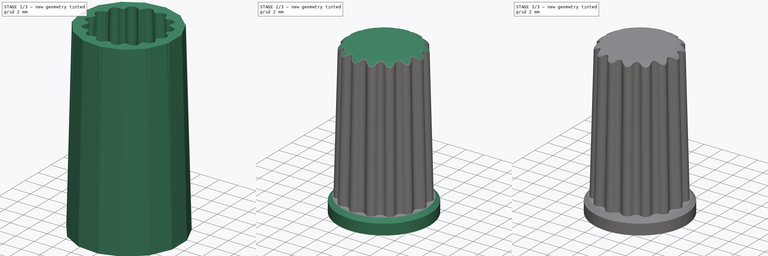
[diagram: build sequence overview — one tinted view per stage of 3, left to right]
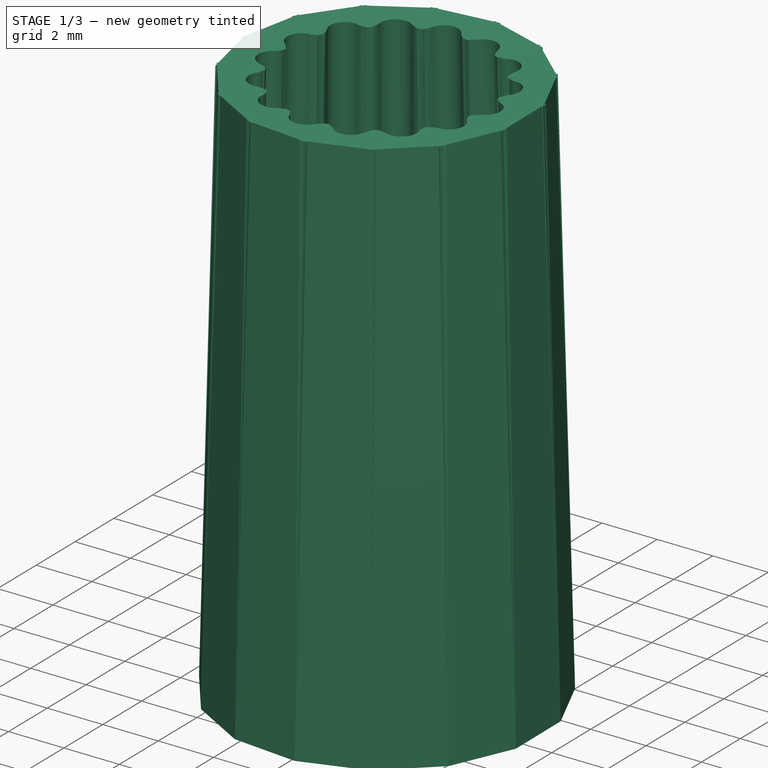
[diagram: stage 1 of 3 — iso view after this stage's code; geometry added in this stage tinted green]
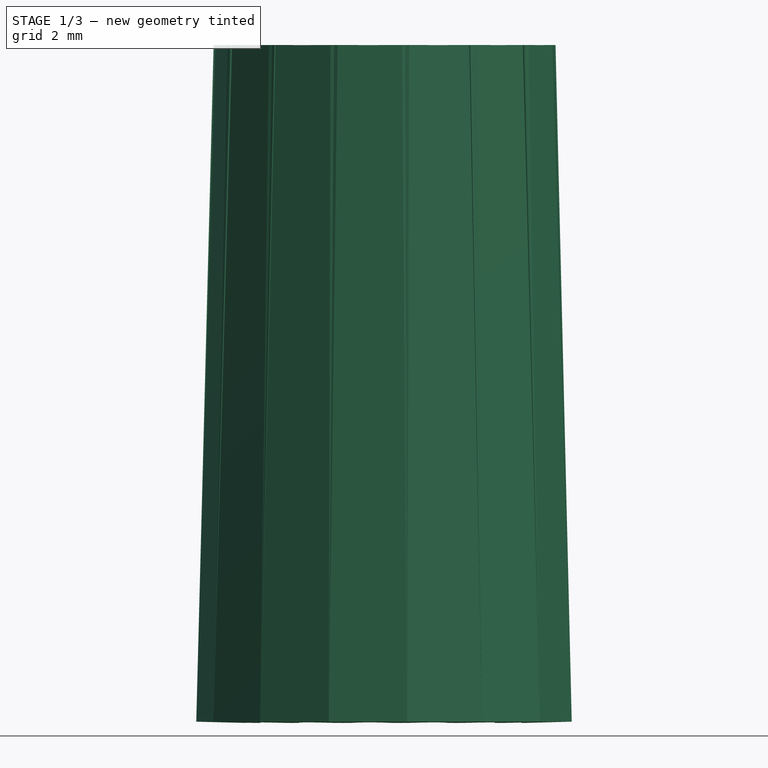
[diagram: stage 1 of 3 — front view after this stage's code; geometry added in this stage tinted green]
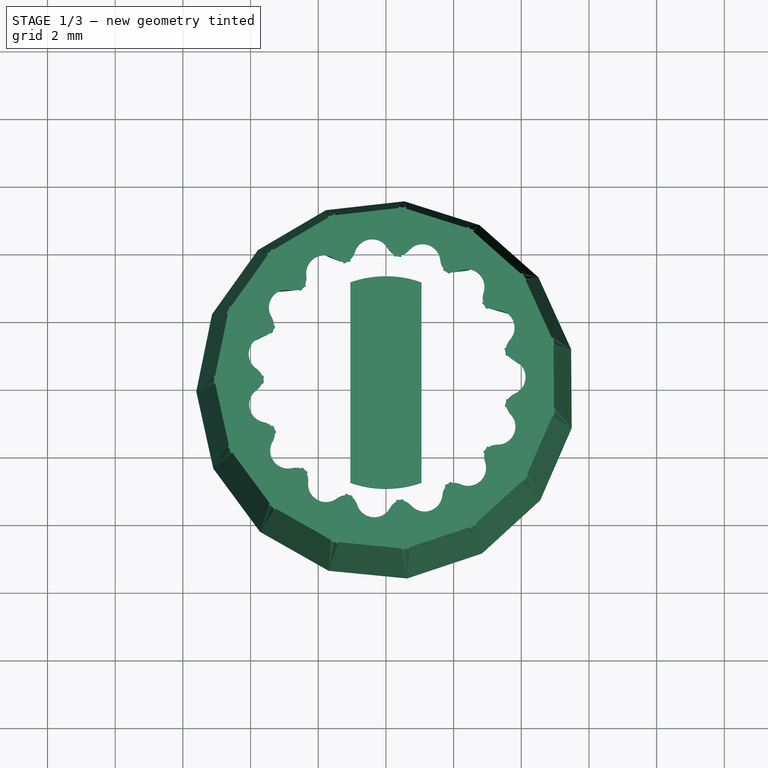
[diagram: stage 1 of 3 — top view after this stage's code; geometry added in this stage tinted green]
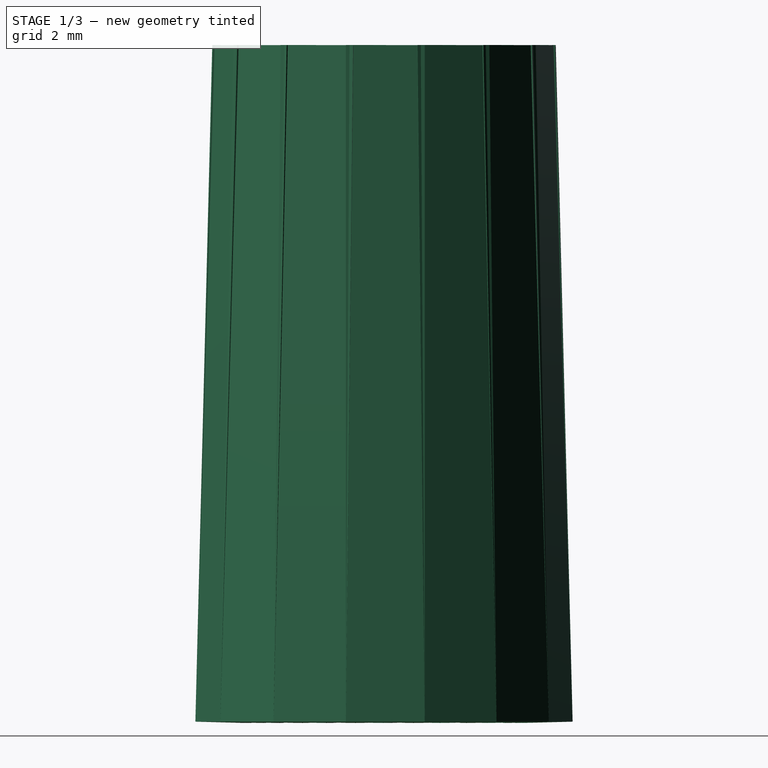
[diagram: stage 1 of 3 — right view after this stage's code; geometry added in this stage tinted green]
FCSTD DOCUMENT  (FreeCAD 0.16R6706 (Git))
Label: knob_small
License: All rights reserved
LicenseURL: http://en.wikipedia.org/wiki/All_rights_reserved
objects: Sketcher::SketchObject×4, PartDesign::Pad×3, Part::Cut×2, PartDesign::Revolution×1, Part::FeaturePython×1, Part::MultiFuse×1
note: 16 computed .brp shape members not serialized (recipe doc carries the construction recipe); baked Part::Feature solids carry a one-line shape summary decoded from their .brp

FEATURE [Sketcher::SketchObject] Sketch003  label="Sketch (inner grip)"
  Placement = pos=(0,0,1.5) rot=(0,-1,0;0.02618rad)
  sketch-geometry (10):
    g0: ArcOfCircle CenterX=4.12147 CenterY=0.0320306 CenterZ=0 NormalX=0 NormalY=0 NormalZ=1 Radius=0.528401 StartAngle=5.13588 EndAngle=7.44604
    g1: ArcOfCircle CenterX=4.54074 CenterY=1.00211 CenterZ=0 NormalX=0 NormalY=0 NormalZ=1 Radius=0.528401 StartAngle=3.3588 EndAngle=4.30444
    g2: ArcOfCircle CenterX=4.55576 CenterY=-0.931413 CenterZ=0 NormalX=0 NormalY=0 NormalZ=1 Radius=0.528401 StartAngle=1.99429 EndAngle=2.93992
    g3: LineSegment [constr] StartX=4.54074 StartY=1.00211 StartZ=0 EndX=0 EndY=0 EndZ=0
    g4: LineSegment [constr] StartX=0 StartY=0 StartZ=0 EndX=4.55576 EndY=-0.931413 EndZ=0
    g5: LineSegment StartX=4.02475 StartY=0.888233 StartZ=0 EndX=5.47449 EndY=1.20818 EndZ=0
    g6: LineSegment StartX=5.47449 StartY=1.20818 StartZ=0 EndX=5.4926 EndY=-1.12295 EndZ=0
    g7: LineSegment StartX=5.4926 StartY=-1.12295 StartZ=0 EndX=4.03807 EndY=-0.825572 EndZ=0
    g8: ArcOfCircle [constr] CenterX=0 CenterY=0 CenterZ=0 NormalX=0 NormalY=0 NormalZ=1 Radius=4.1216 StartAngle=6.08152 EndAngle=6.5004
    g9: LineSegment [constr] StartX=4.12147 StartY=0.0320306 StartZ=0 EndX=4.64986 EndY=0.036137 EndZ=0
  constraints (28):
    c: Coincident(g1,g0)
    c: Coincident(g2,g0)
    c: Coincident(g3,g1)
    c: Coincident(g3,g-1)
    c: Coincident(g4,g-1)
    c: Coincident(g4,g2)
    c: Equal(g1,g0)
    c: Equal(g0,g2)
    c: PointOnObject(g1,g3)
    c: PointOnObject(g2,g4)
    c: Coincident(g5,g1)
    c: Coincident(g6,g5)
    c: Coincident(g7,g6)
    c: Coincident(g7,g2)
    c: Parallel(g4,g7)
    c: Parallel(g5,g3)
    c: Tangent(g0,g1)
    c: Tangent(g0,g2)
    c: Angle(g4,g3) = 0.418879
    c: Coincident(g8,g-1)
    c: Coincident(g8,g1)
    c: Coincident(g8,g2)
    c: PointOnObject(g0,g8)
    c: Coincident(g9,g0)
    c: PointOnObject(g9,g0)
    c: Perpendicular(g8,g9)
    c: Distance(g-1,g9) = 4.65
    c: Equal(g7,g5)
FEATURE [PartDesign::Pad] Pad001  label="Pad (inner grip)"
  Length = 20
  Length2 = 100
  Placement = pos=(0,0,1.5) rot=(0,-1,0;0.02618rad)
  Sketch = -> Sketch003
  Type = 0
FEATURE [Part::FeaturePython] Array001  label="Array (grip)"  # Draft array (typed FeaturePython)
  Angle = 360
  ArrayType = 1
  Axis = (0,0,1)
  Base = -> Pad001
  Center = (0,0,0)
  Fuse = true
  IntervalAxis = (0,0,0)
  IntervalX = (1,0,0)
  IntervalY = (0,1,0)
  IntervalZ = (0,0,0)
  NumberPolar = 15
  NumberX = 2
  NumberY = 2
  NumberZ = 1
FEATURE [Sketcher::SketchObject] Sketch006  label="Sketch (bridge assist)"
  Placement = pos=(0,0,14) rot=(0,0,1;1.5708rad)
  sketch-geometry (4):
    g0: LineSegment StartX=-2.95924 StartY=1.05 StartZ=0 EndX=2.95924 EndY=1.05 EndZ=0
    g1: LineSegment StartX=-2.95924 StartY=-1.05 StartZ=0 EndX=2.95924 EndY=-1.05 EndZ=0
    g2: ArcOfCircle CenterX=0 CenterY=0 CenterZ=0 NormalX=0 NormalY=0 NormalZ=1 Radius=3.14 StartAngle=2.80063 EndAngle=3.48256
    g3: ArcOfCircle CenterX=0 CenterY=0 CenterZ=0 NormalX=0 NormalY=0 NormalZ=1 Radius=3.14 StartAngle=5.94222 EndAngle=6.62415
  constraints (12):
    c: Horizontal(g0)
    c: Horizontal(g1)
    c: Equal(g0,g1)
    c: Coincident(g2,g-1)
    c: Coincident(g2,g0)
    c: Coincident(g2,g1)
    c: Coincident(g3,g-1)
    c: Coincident(g3,g0)
    c: Coincident(g3,g1)
    c: Equal(g3,g2)
    c: Radius(g3) = 3.14
    c: DistanceY(g1,g0) = 2.1
FEATURE [PartDesign::Pad] Pad002  label="Pad (bridge assist)"
  Length = 0.5
  Length2 = 1
  Placement = pos=(0,0,14) rot=(0,0,1;1.5708rad)
  Sketch = -> Sketch006
  Type = 0
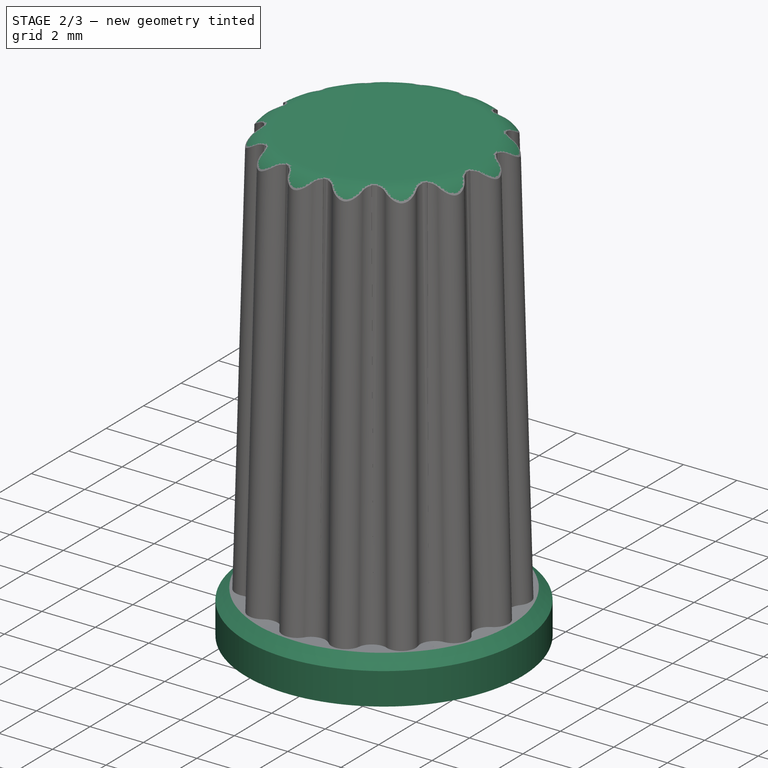
[diagram: stage 2 of 3 — iso view after this stage's code; geometry added in this stage tinted green]
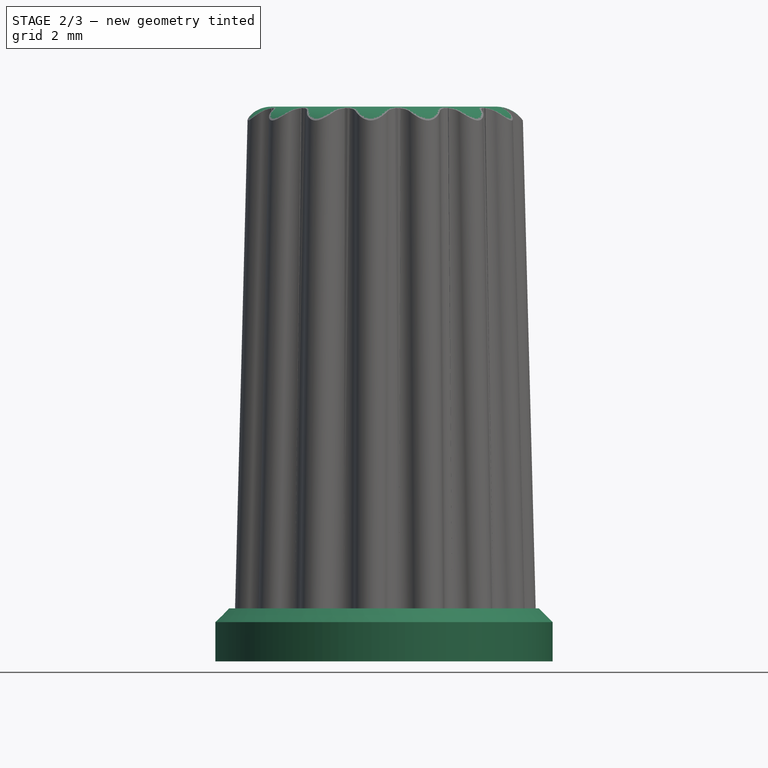
[diagram: stage 2 of 3 — front view after this stage's code; geometry added in this stage tinted green]
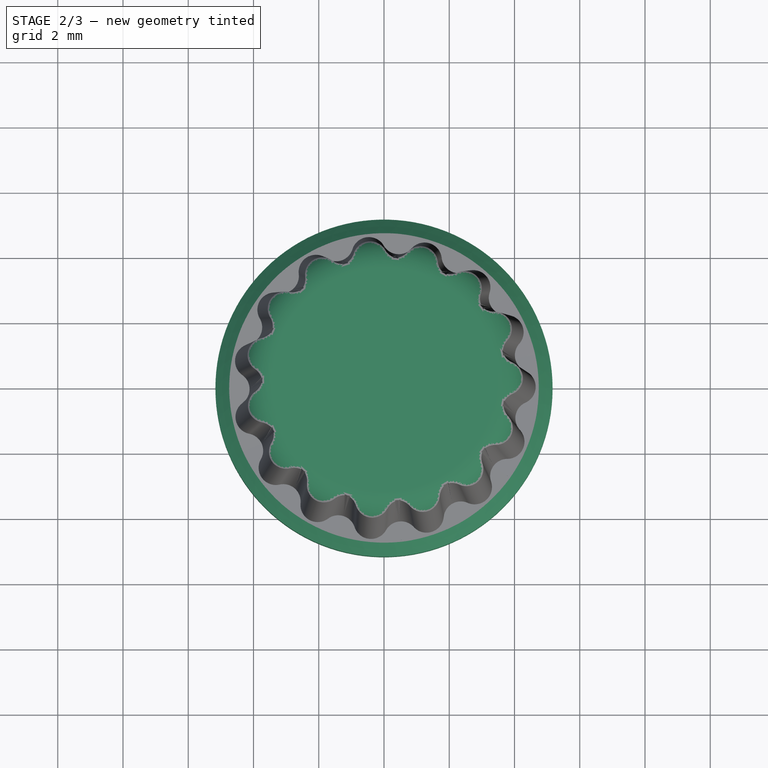
[diagram: stage 2 of 3 — top view after this stage's code; geometry added in this stage tinted green]
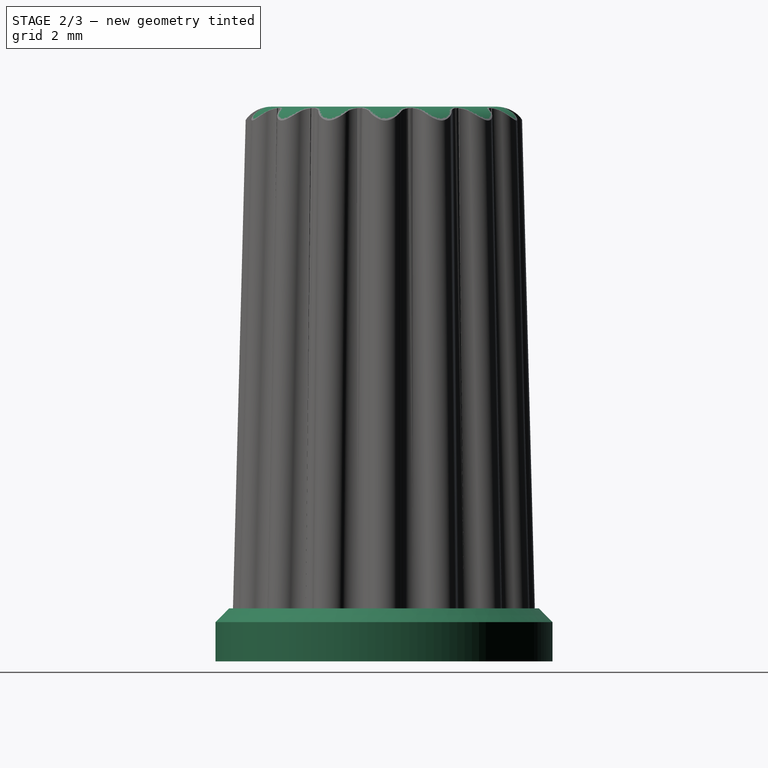
[diagram: stage 2 of 3 — right view after this stage's code; geometry added in this stage tinted green]
FEATURE [Sketcher::SketchObject] Sketch
  Placement = pos=(0,0,0) rot=(1,0,0;1.5708rad)
  sketch-geometry (11):
    g0: LineSegment StartX=3.14 StartY=0 StartZ=0 EndX=3.14 EndY=14 EndZ=0
    g1: LineSegment StartX=3.14 StartY=14 StartZ=0 EndX=0 EndY=14 EndZ=0
    g2: LineSegment StartX=0 StartY=14 StartZ=0 EndX=0 EndY=17 EndZ=0
    g3: LineSegment StartX=0 StartY=17 StartZ=0 EndX=3.44 EndY=17 EndZ=0
    g4: ArcOfCircle CenterX=3.44 CenterY=16 CenterZ=0 NormalX=0 NormalY=0 NormalZ=1 Radius=1 StartAngle=0 EndAngle=1.5708
    g5: LineSegment [constr] StartX=3.44 StartY=17 StartZ=0 EndX=3.44 EndY=16 EndZ=0
    g6: LineSegment [constr] StartX=4.44 StartY=16 StartZ=0 EndX=3.44 EndY=16 EndZ=0
    g7: LineSegment StartX=3.14 StartY=0 StartZ=0 EndX=5.16717 EndY=0 EndZ=0
    g8: LineSegment StartX=5.16717 StartY=0 StartZ=0 EndX=5.16717 EndY=1.2 EndZ=0
    g9: LineSegment StartX=5.16717 StartY=1.2 StartZ=0 EndX=4.69001 EndY=1.67717 EndZ=0
    g10: LineSegment StartX=4.69001 StartY=1.67717 StartZ=0 EndX=4.44 EndY=16 EndZ=0
  constraints (31):
    c: PointOnObject(g0,g-1)
    c: Vertical(g0)
    c: DistanceY(g0,g0) = 14
    c: Coincident(g1,g0)
    c: PointOnObject(g1,g-2)
    c: Horizontal(g1)
    c: Coincident(g2,g1)
    c: PointOnObject(g2,g-2)
    c: DistanceY(g2,g2) = 3
    c: Coincident(g3,g2)
    c: Horizontal(g3)
    c: Coincident(g5,g4)
    c: Vertical(g5)
    c: Coincident(g6,g4)
    c: Coincident(g6,g4)
    c: Horizontal(g6)
    c: Coincident(g7,g0)
    c: Horizontal(g7)
    c: DistanceX(g-1,g0) = 3.14
    c: Coincident(g4,g3)
    c: DistanceX(g0,g4) = 1.3
    c: Coincident(g8,g7)
    c: Coincident(g9,g8)
    c: Coincident(g10,g9)
    c: Coincident(g10,g4)
    c: Vertical(g8)
    c: Angle(g9,g8) = 2.35619
    c: Angle(g10) = 1.58825
    c: DistanceY(g8,g8) = 1.2
    c: Coincident(g5,g3)
    c: Radius(g4) = 1
FEATURE [PartDesign::Revolution] Revolution
  Angle = 360
  Axis = (0,0,1)
  Base = (0,0,0)
  Placement = pos=(0,0,0) rot=(1,0,0;1.5708rad)
  ReferenceAxis = -> Sketch [V_Axis]
  Sketch = -> Sketch
FEATURE [Part::Cut] Cut  label="Cut (knob with grip)"
  Base = -> Revolution
  Tool = -> Array001
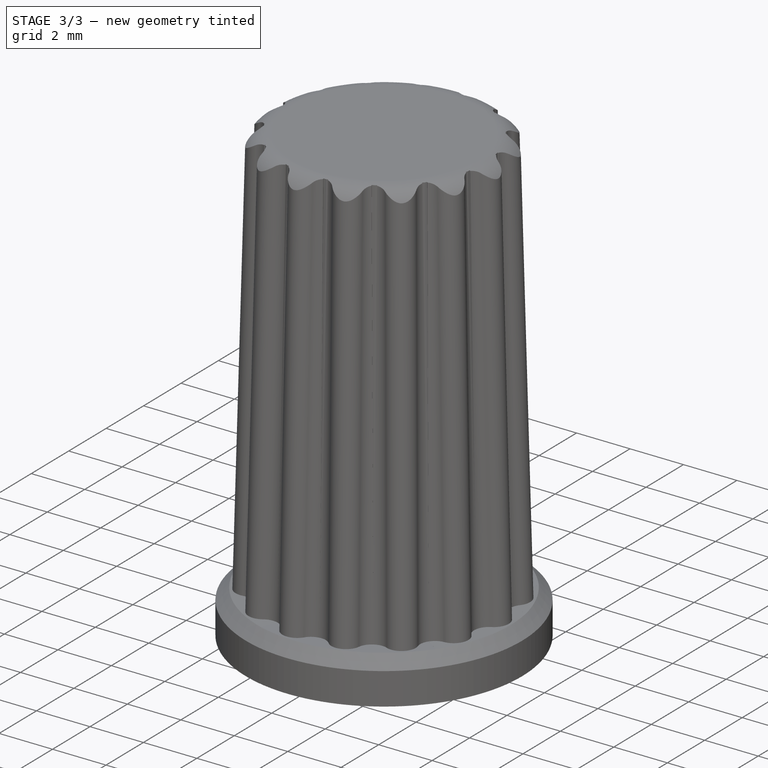
[diagram: stage 3 of 3 — iso view after this stage's code; geometry added in this stage tinted green]
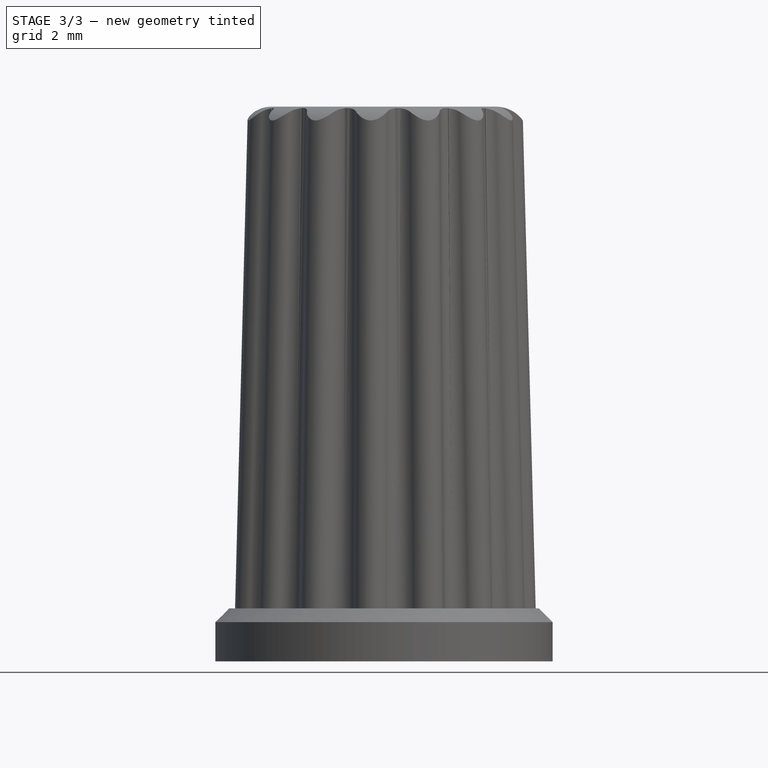
[diagram: stage 3 of 3 — front view after this stage's code; geometry added in this stage tinted green]
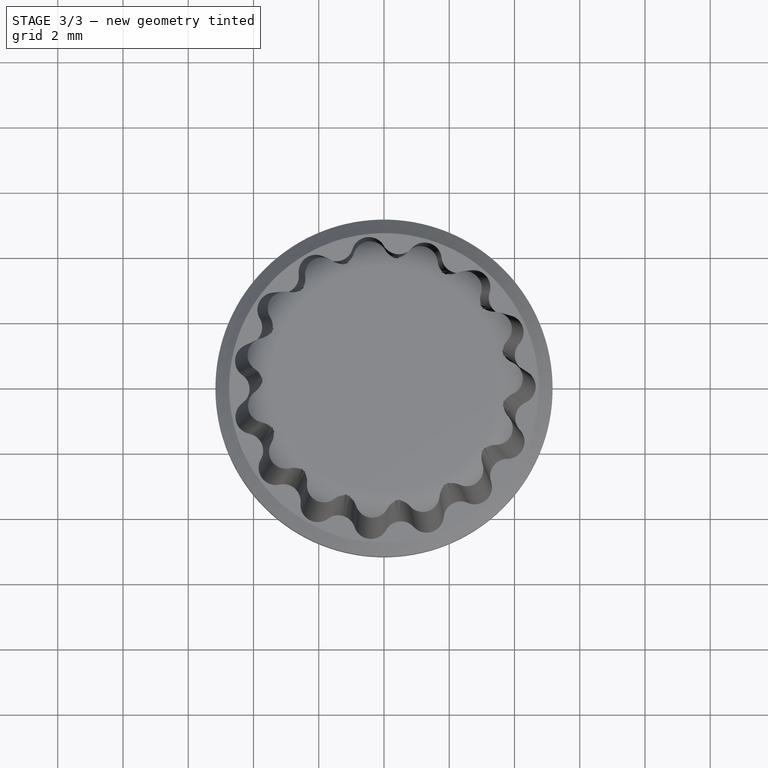
[diagram: stage 3 of 3 — top view after this stage's code; geometry added in this stage tinted green]
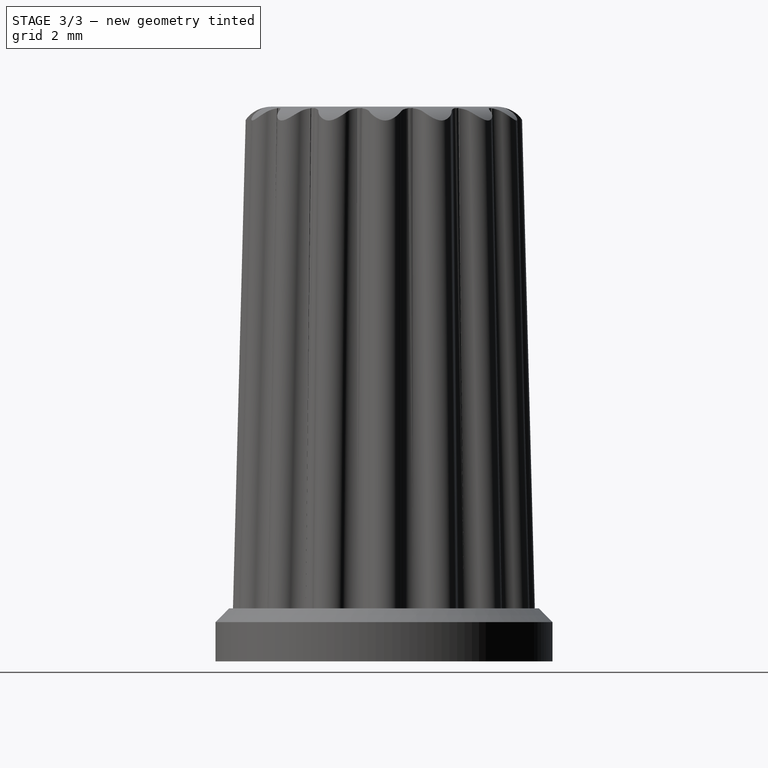
[diagram: stage 3 of 3 — right view after this stage's code; geometry added in this stage tinted green]
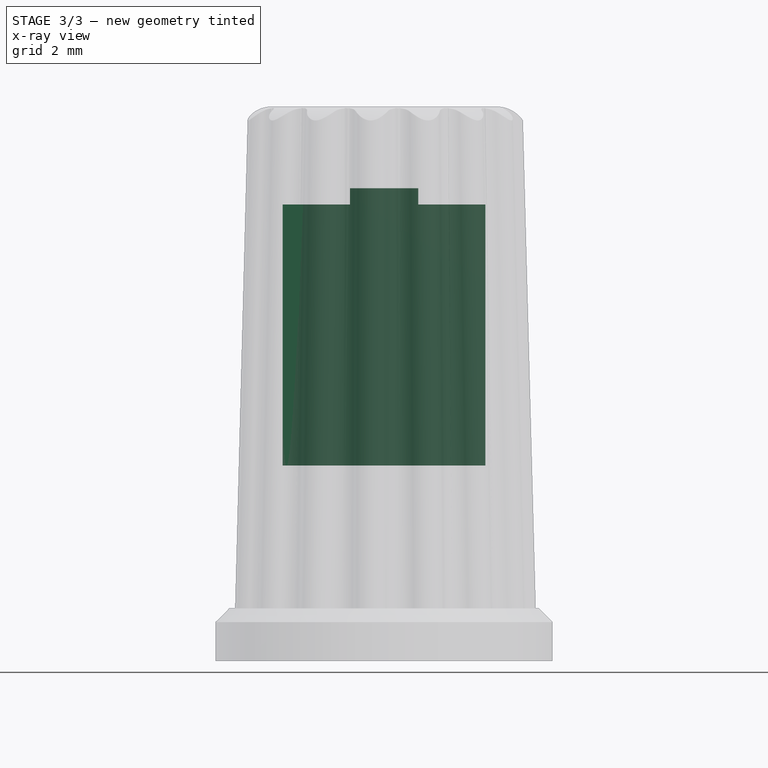
[diagram: stage 3 of 3 — x-ray composite at the front view; earlier geometry ghosted, this stage's added geometry solid]
FEATURE [Sketcher::SketchObject] Sketch005  label="Sketch (slot)"
  Placement = pos=(0,0,0) rot=(1,0,0;1.5708rad)
  sketch-geometry (4):
    g0: LineSegment StartX=3.2 StartY=6 StartZ=0 EndX=3.2 EndY=15 EndZ=0
    g1: LineSegment StartX=3.2 StartY=15 StartZ=0 EndX=-3.2 EndY=15 EndZ=0
    g2: LineSegment StartX=-3.2 StartY=15 StartZ=0 EndX=-3.2 EndY=6 EndZ=0
    g3: LineSegment StartX=-3.2 StartY=6 StartZ=0 EndX=3.2 EndY=6 EndZ=0
  constraints (12):
    c: Vertical(g0)
    c: Coincident(g1,g0)
    c: Horizontal(g1)
    c: Coincident(g2,g1)
    c: Vertical(g2)
    c: Coincident(g3,g2)
    c: Horizontal(g3)
    c: Coincident(g0,g3)
    c: DistanceX(g1,g1) = 6.4
    c: Symmetric(g0,g2,g-2)
    c: DistanceY(g-1,g0) = 15
    c: DistanceY(g0,g0) = 9
FEATURE [PartDesign::Pad] Pad  label="Pad (slot)"
  Length = 0.45
  Length2 = 0.45
  Placement = pos=(0,0,0) rot=(1,0,0;1.5708rad)
  Sketch = -> Sketch005
  Type = 4
FEATURE [Part::Cut] Cut001  label="Cut (bridge assist)"
  Base = -> Cut
  Tool = -> Pad002
FEATURE [Part::MultiFuse] Fusion
  Shapes = -> [Cut001,Pad]
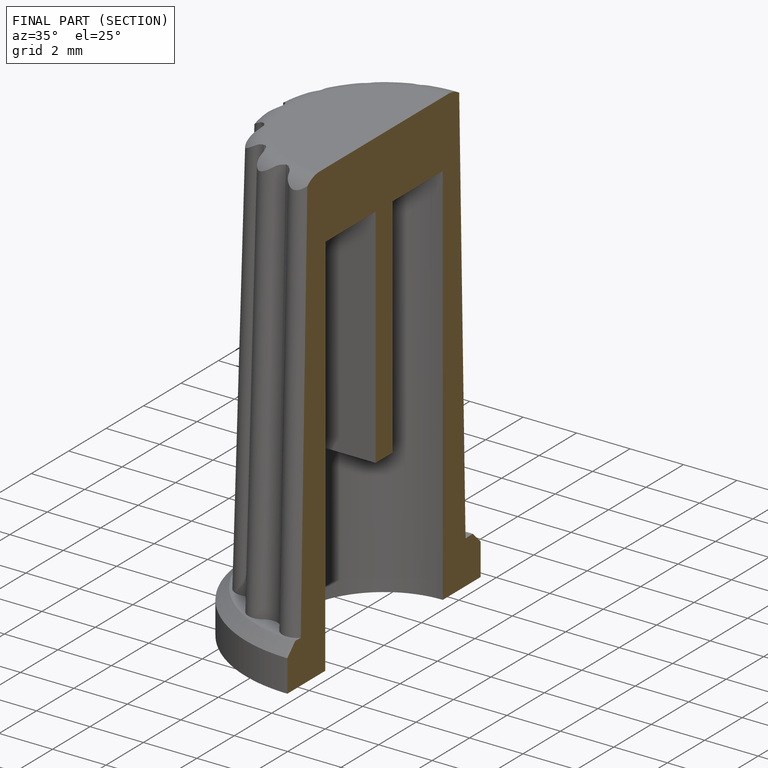
[diagram: finished part — half-section view (interior)]
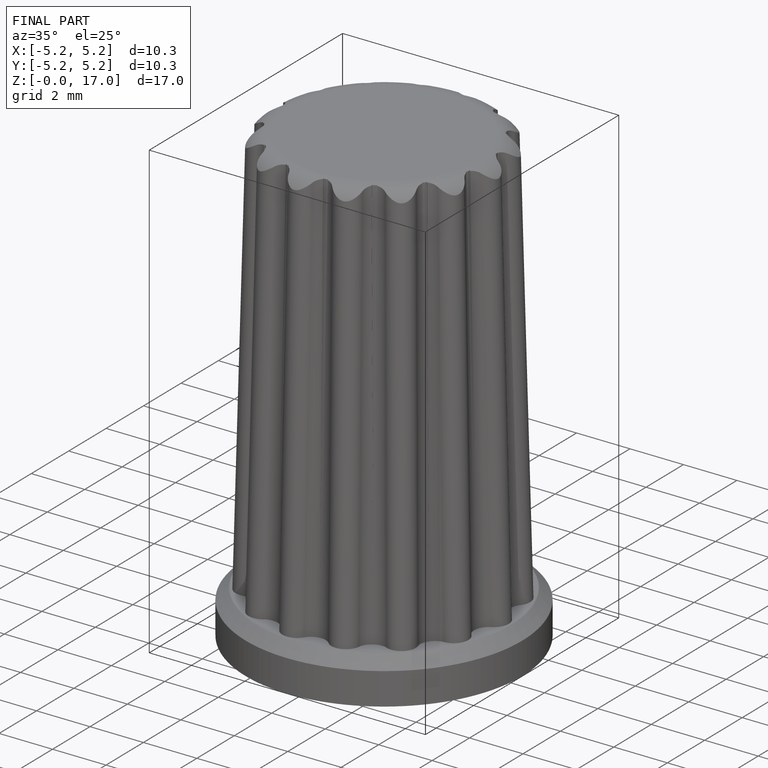
[diagram: finished part — iso view with bounding-box wireframe]
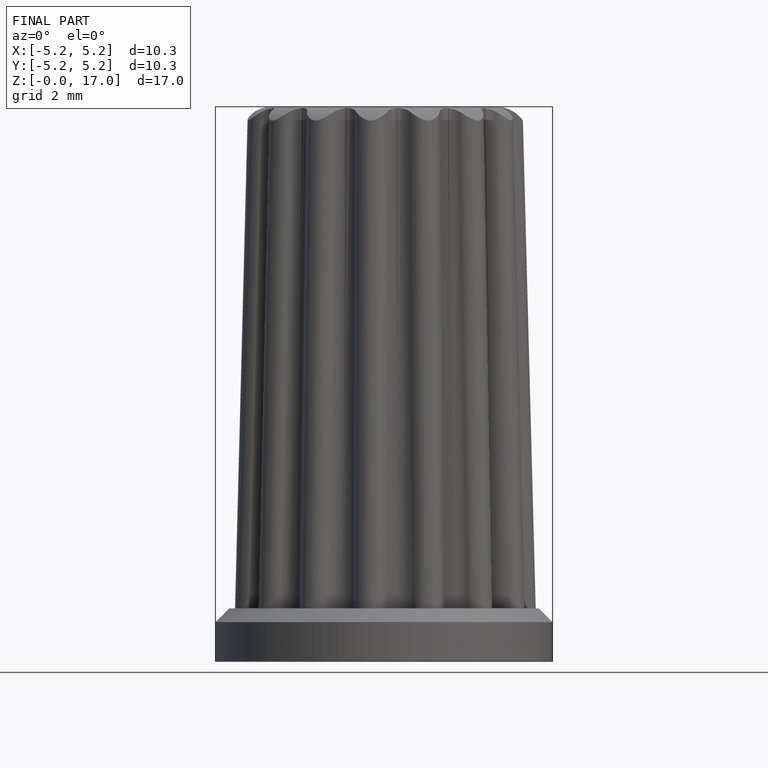
[diagram: finished part — front view with bounding-box wireframe]
